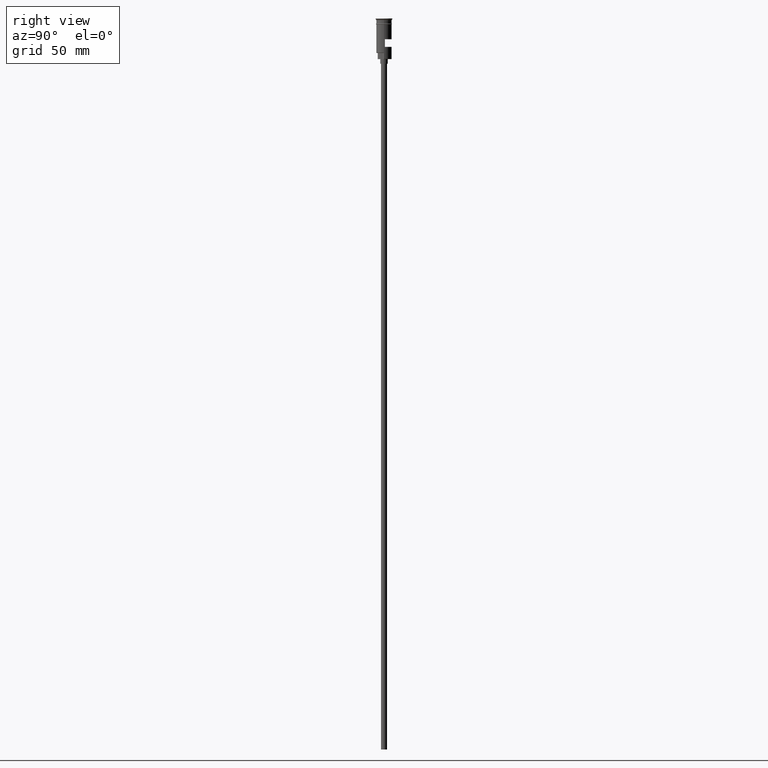
[diagram: clean part render]
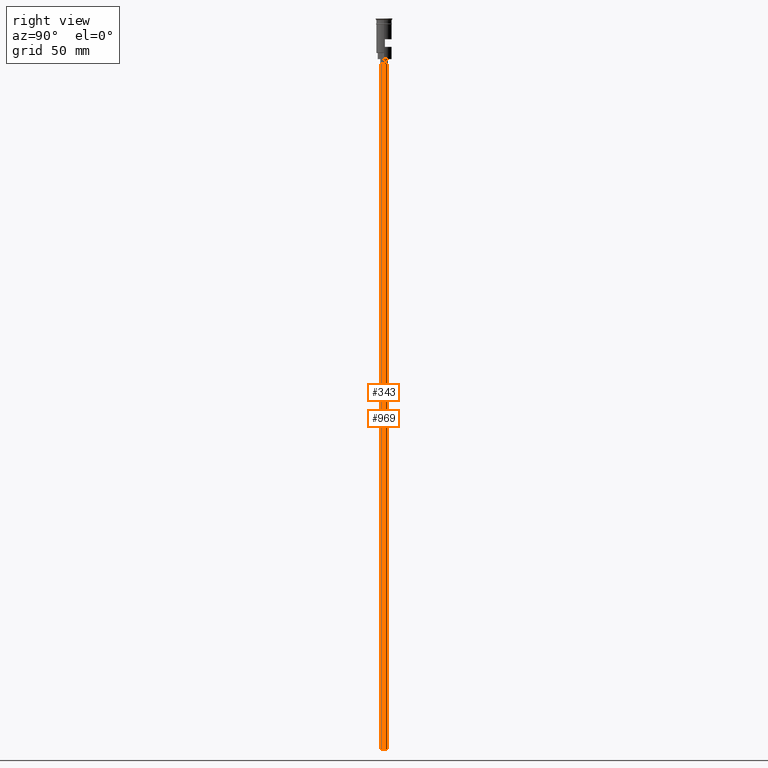
[diagram: same view with one multi-face feature highlighted, each face labeled with its STEP entity id]
A machine part, right view. The highlighted faces form ONE feature: a constant-radius fillet chain: 2 tangent blend faces with common blend radius 2 mm. The faces share edges in the B-rep.
Their STEP definitions:
[1] entity #969 (Cylinder):
#18 = VECTOR ( 'NONE', #59, 1000.000000000000000 ) ;
#59 = DIRECTION ( 'NONE',  ( -0.000000000000000000, -0.000000000000000000, 1.000000000000000000 ) ) ;
#142 = EDGE_LOOP ( 'NONE', ( #220, #729, #456, #197 ) ) ;
#158 = DIRECTION ( 'NONE',  ( 1.000000000000000000, 0.000000000000000000, 0.000000000000000000 ) ) ;
#187 = DIRECTION ( 'NONE',  ( 0.000000000000000000, 0.000000000000000000, -1.000000000000000000 ) ) ;
#188 = DIRECTION ( 'NONE',  ( -1.000000000000000000, 0.000000000000000000, 0.000000000000000000 ) ) ;
#190 = VERTEX_POINT ( 'NONE', #1545 ) ;
#197 = ORIENTED_EDGE ( 'NONE', *, *, #238, .T. ) ;
#220 = ORIENTED_EDGE ( 'NONE', *, *, #1463, .F. ) ;
#238 = EDGE_CURVE ( 'NONE', #190, #290, #511, .T. ) ;
#256 = CARTESIAN_POINT ( 'NONE',  ( -2.000000000000000000, 2.449293598294706414E-16, -476.5000000000000568 ) ) ;
#279 = DIRECTION ( 'NONE',  ( -0.000000000000000000, -0.000000000000000000, 1.000000000000000000 ) ) ;
#286 = DIRECTION ( 'NONE',  ( -0.000000000000000000, -0.000000000000000000, 1.000000000000000000 ) ) ;
#290 = VERTEX_POINT ( 'NONE', #296 ) ;
#296 = CARTESIAN_POINT ( 'NONE',  ( -2.000000000000000000, 2.449293598294706414E-16, -29.50000000000000000 ) ) ;
#329 = CIRCLE ( 'NONE', #533, 2.000000000000000000 ) ;
#344 = CARTESIAN_POINT ( 'NONE',  ( 2.000000000000000000, 0.000000000000000000, -476.5000000000000568 ) ) ;
#358 = VECTOR ( 'NONE', #286, 1000.000000000000000 ) ;
#418 = CARTESIAN_POINT ( 'NONE',  ( 0.000000000000000000, 0.000000000000000000, -476.5000000000000568 ) ) ;
#456 = ORIENTED_EDGE ( 'NONE', *, *, #598, .T. ) ;
#511 = CIRCLE ( 'NONE', #1287, 2.000000000000000000 ) ;
#533 = AXIS2_PLACEMENT_3D ( 'NONE', #1147, #1522, #188 ) ;
#574 = VERTEX_POINT ( 'NONE', #256 ) ;
#585 = AXIS2_PLACEMENT_3D ( 'NONE', #418, #279, #158 ) ;
#598 = EDGE_CURVE ( 'NONE', #853, #190, #1526, .T. ) ;
#676 = DIRECTION ( 'NONE',  ( -1.000000000000000000, 0.000000000000000000, 0.000000000000000000 ) ) ;
#729 = ORIENTED_EDGE ( 'NONE', *, *, #1057, .F. ) ;
#853 = VERTEX_POINT ( 'NONE', #344 ) ;
#969 = ADVANCED_FACE ( 'NONE', ( #1520 ), #1528, .T. ) ;
#1057 = EDGE_CURVE ( 'NONE', #853, #574, #329, .T. ) ;
#1147 = CARTESIAN_POINT ( 'NONE',  ( 0.000000000000000000, 0.000000000000000000, -476.5000000000000568 ) ) ;
#1171 = CARTESIAN_POINT ( 'NONE',  ( -2.000000000000000000, 2.449293598294706414E-16, -476.5000000000000568 ) ) ;
#1251 = CARTESIAN_POINT ( 'NONE',  ( 2.000000000000000000, 0.000000000000000000, -476.5000000000000568 ) ) ;
#1287 = AXIS2_PLACEMENT_3D ( 'NONE', #1521, #187, #676 ) ;
#1379 = LINE ( 'NONE', #1171, #358 ) ;
#1463 = EDGE_CURVE ( 'NONE', #574, #290, #1379, .T. ) ;
#1520 = FACE_OUTER_BOUND ( 'NONE', #142, .T. ) ;
#1521 = CARTESIAN_POINT ( 'NONE',  ( 0.000000000000000000, 0.000000000000000000, -29.50000000000000000 ) ) ;
#1522 = DIRECTION ( 'NONE',  ( 0.000000000000000000, 0.000000000000000000, -1.000000000000000000 ) ) ;
#1526 = LINE ( 'NONE', #1251, #18 ) ;
#1528 = CYLINDRICAL_SURFACE ( 'NONE', #585, 2.000000000000000000 ) ;
#1545 = CARTESIAN_POINT ( 'NONE',  ( 2.000000000000000000, 0.000000000000000000, -29.50000000000000000 ) ) ;
[2] entity #343 (Cylinder):
#18 = VECTOR ( 'NONE', #59, 1000.000000000000000 ) ;
#55 = DIRECTION ( 'NONE',  ( 0.000000000000000000, 0.000000000000000000, -1.000000000000000000 ) ) ;
#59 = DIRECTION ( 'NONE',  ( -0.000000000000000000, -0.000000000000000000, 1.000000000000000000 ) ) ;
#180 = CARTESIAN_POINT ( 'NONE',  ( 0.000000000000000000, 0.000000000000000000, -29.50000000000000000 ) ) ;
#190 = VERTEX_POINT ( 'NONE', #1545 ) ;
#200 = AXIS2_PLACEMENT_3D ( 'NONE', #1016, #1538, #780 ) ;
#239 = ORIENTED_EDGE ( 'NONE', *, *, #1122, .F. ) ;
#256 = CARTESIAN_POINT ( 'NONE',  ( -2.000000000000000000, 2.449293598294706414E-16, -476.5000000000000568 ) ) ;
#264 = ORIENTED_EDGE ( 'NONE', *, *, #1463, .T. ) ;
#286 = DIRECTION ( 'NONE',  ( -0.000000000000000000, -0.000000000000000000, 1.000000000000000000 ) ) ;
#290 = VERTEX_POINT ( 'NONE', #296 ) ;
#291 = EDGE_CURVE ( 'NONE', #290, #190, #1256, .T. ) ;
#296 = CARTESIAN_POINT ( 'NONE',  ( -2.000000000000000000, 2.449293598294706414E-16, -29.50000000000000000 ) ) ;
#343 = ADVANCED_FACE ( 'NONE', ( #1190 ), #572, .T. ) ;
#344 = CARTESIAN_POINT ( 'NONE',  ( 2.000000000000000000, 0.000000000000000000, -476.5000000000000568 ) ) ;
#358 = VECTOR ( 'NONE', #286, 1000.000000000000000 ) ;
#503 = EDGE_LOOP ( 'NONE', ( #239, #264, #802, #1305 ) ) ;
#572 = CYLINDRICAL_SURFACE ( 'NONE', #1473, 2.000000000000000000 ) ;
#574 = VERTEX_POINT ( 'NONE', #256 ) ;
#598 = EDGE_CURVE ( 'NONE', #853, #190, #1526, .T. ) ;
#780 = DIRECTION ( 'NONE',  ( -1.000000000000000000, 0.000000000000000000, 0.000000000000000000 ) ) ;
#791 = CIRCLE ( 'NONE', #200, 2.000000000000000000 ) ;
#802 = ORIENTED_EDGE ( 'NONE', *, *, #291, .T. ) ;
#853 = VERTEX_POINT ( 'NONE', #344 ) ;
#1016 = CARTESIAN_POINT ( 'NONE',  ( 0.000000000000000000, 0.000000000000000000, -476.5000000000000568 ) ) ;
#1024 = DIRECTION ( 'NONE',  ( -1.000000000000000000, 0.000000000000000000, 0.000000000000000000 ) ) ;
#1093 = CARTESIAN_POINT ( 'NONE',  ( 0.000000000000000000, 0.000000000000000000, -476.5000000000000568 ) ) ;
#1122 = EDGE_CURVE ( 'NONE', #574, #853, #791, .T. ) ;
#1171 = CARTESIAN_POINT ( 'NONE',  ( -2.000000000000000000, 2.449293598294706414E-16, -476.5000000000000568 ) ) ;
#1185 = AXIS2_PLACEMENT_3D ( 'NONE', #180, #55, #1024 ) ;
#1190 = FACE_OUTER_BOUND ( 'NONE', #503, .T. ) ;
#1251 = CARTESIAN_POINT ( 'NONE',  ( 2.000000000000000000, 0.000000000000000000, -476.5000000000000568 ) ) ;
#1256 = CIRCLE ( 'NONE', #1185, 2.000000000000000000 ) ;
#1305 = ORIENTED_EDGE ( 'NONE', *, *, #598, .F. ) ;
#1308 = DIRECTION ( 'NONE',  ( 1.000000000000000000, 0.000000000000000000, 0.000000000000000000 ) ) ;
#1379 = LINE ( 'NONE', #1171, #358 ) ;
#1463 = EDGE_CURVE ( 'NONE', #574, #290, #1379, .T. ) ;
#1473 = AXIS2_PLACEMENT_3D ( 'NONE', #1093, #1563, #1308 ) ;
#1526 = LINE ( 'NONE', #1251, #18 ) ;
#1538 = DIRECTION ( 'NONE',  ( 0.000000000000000000, 0.000000000000000000, -1.000000000000000000 ) ) ;
#1545 = CARTESIAN_POINT ( 'NONE',  ( 2.000000000000000000, 0.000000000000000000, -29.50000000000000000 ) ) ;
#1563 = DIRECTION ( 'NONE',  ( -0.000000000000000000, -0.000000000000000000, 1.000000000000000000 ) ) ;